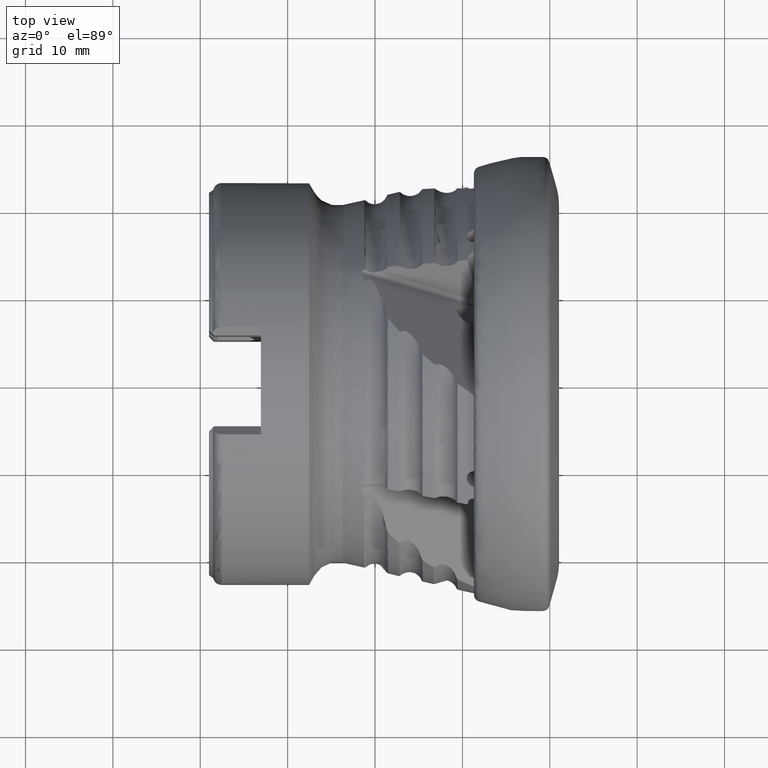
[diagram: clean part render]
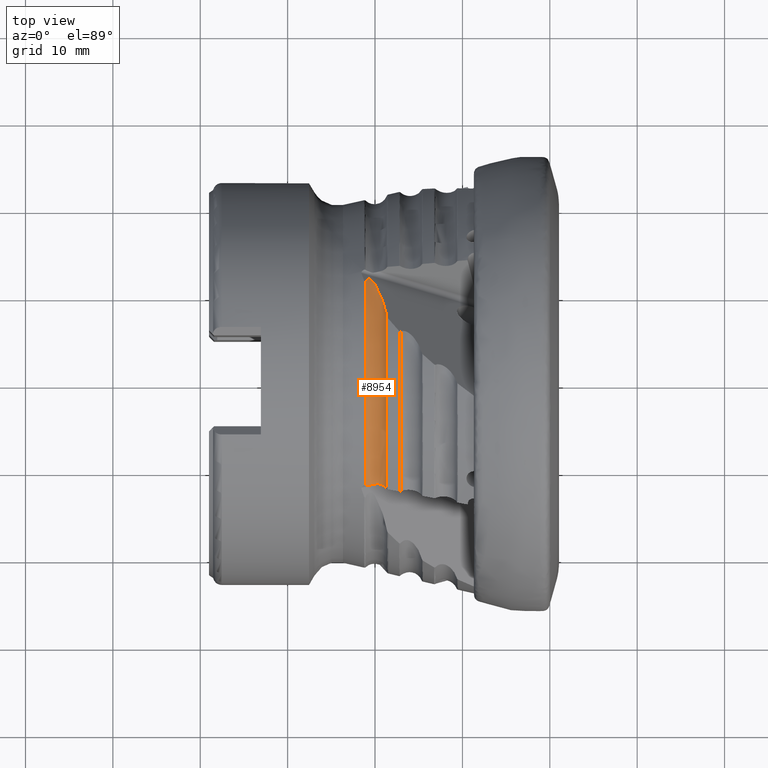
[diagram: same view with one face highlighted and labeled with its STEP entity id]
A machine part, top view. The second image highlights one B-rep face of the part: STEP entity #8954.
In plain terms, the highlighted toroidal blend (fillet) surface has major radius 22.1056 mm and minor (blend) radius 1.5 mm.
Its self-contained STEP definition (entity closure, byte-faithful):
#147 = CARTESIAN_POINT ( 'NONE',  ( -18.83420536669757800, -12.07604253285646200, 17.42930489717644700 ) ) ;
#432 = CARTESIAN_POINT ( 'NONE',  ( -20.18206663218673200, 11.36673044976028300, 17.19127439798386400 ) ) ;
#515 = VERTEX_POINT ( 'NONE', #1441 ) ;
#735 = CARTESIAN_POINT ( 'NONE',  ( -20.97129028517865000, -11.90463999588526000, 17.19484492171752500 ) ) ;
#775 = CARTESIAN_POINT ( 'NONE',  ( -20.39302183279721300, -11.81919402878095800, 16.92516635417026500 ) ) ;
#930 = CARTESIAN_POINT ( 'NONE',  ( -18.64922864038294000, -12.30127360869037600, 17.71730282600475800 ) ) ;
#1154 = CARTESIAN_POINT ( 'NONE',  ( -18.64922864038294400, 7.488645797815390600, 20.22731657781329100 ) ) ;
#1227 = CARTESIAN_POINT ( 'NONE',  ( -20.35333458569974500, 11.55966102298362600, 17.09393407942015800 ) ) ;
#1274 = TOROIDAL_SURFACE ( 'NONE', #3848, 22.10556227074097200, 1.500000000000000900 ) ;
#1332 = CARTESIAN_POINT ( 'NONE',  ( -21.07315635611660600, -11.92224939465047500, 17.29810966300724900 ) ) ;
#1441 = CARTESIAN_POINT ( 'NONE',  ( -21.07315635611662000, 11.44119915079428700, 17.61997702988101700 ) ) ;
#1462 = EDGE_CURVE ( 'NONE', #1739, #515, #9987, .T. ) ;
#1575 = CARTESIAN_POINT ( 'NONE',  ( -20.03847583795256100, -11.73665933451635500, 16.92811346804276700 ) ) ;
#1739 = VERTEX_POINT ( 'NONE', #3649 ) ;
#2028 = CARTESIAN_POINT ( 'NONE',  ( -20.51803391425665200, 11.68504128406969800, 17.06085492958283100 ) ) ;
#2141 = ORIENTED_EDGE ( 'NONE', *, *, #9572, .T. ) ;
#2371 = CARTESIAN_POINT ( 'NONE',  ( -19.61178160956886200, -11.71346203183988500, 17.02276125132552000 ) ) ;
#2782 = CARTESIAN_POINT ( 'NONE',  ( -19.10118284619676400, 9.115495531307811200, 18.84571143392625800 ) ) ;
#2816 = CARTESIAN_POINT ( 'NONE',  ( -20.70991844265395100, 11.72657535284726500, 17.12751241158677800 ) ) ;
#3010 = ORIENTED_EDGE ( 'NONE', *, *, #5117, .T. ) ;
#3141 = ORIENTED_EDGE ( 'NONE', *, *, #5961, .T. ) ;
#3213 = CIRCLE ( 'NONE', #6737, 21.00867983814471500 ) ;
#3381 = VERTEX_POINT ( 'NONE', #4629 ) ;
#3554 = CARTESIAN_POINT ( 'NONE',  ( -19.51565463614482000, 10.14022040533940200, 18.04882040843328600 ) ) ;
#3596 = CARTESIAN_POINT ( 'NONE',  ( -20.85621139982640000, 11.67363851239072000, 17.26346488120244200 ) ) ;
#3649 = CARTESIAN_POINT ( 'NONE',  ( -18.64922864038294400, 7.488645797815390600, 20.22731657781329100 ) ) ;
#3848 = AXIS2_PLACEMENT_3D ( 'NONE', #4945, #7995, #5718 ) ;
#4054 = CARTESIAN_POINT ( 'NONE',  ( -19.28856589964364300, -11.81080968314701200, 17.11829692508700200 ) ) ;
#4288 = CARTESIAN_POINT ( 'NONE',  ( -21.07315635611660600, 0.0000000000000000000, 0.0000000000000000000 ) ) ;
#4323 = VERTEX_POINT ( 'NONE', #1332 ) ;
#4355 = CARTESIAN_POINT ( 'NONE',  ( -19.81091421840319800, 10.75737874332672400, 17.59467255514376300 ) ) ;
#4381 = CARTESIAN_POINT ( 'NONE',  ( -21.02437999510276300, 11.51594640033136900, 17.51719318892816400 ) ) ;
#4504 = CARTESIAN_POINT ( 'NONE',  ( -18.64922864038296900, 0.0000000000000000000, 0.0000000000000000000 ) ) ;
#4540 = AXIS2_PLACEMENT_3D ( 'NONE', #4504, #10004, #5294 ) ;
#4629 = CARTESIAN_POINT ( 'NONE',  ( -18.64922864038294000, -12.30127360869037600, 17.71730282600475800 ) ) ;
#4686 = CARTESIAN_POINT ( 'NONE',  ( -20.66828254597287500, -11.87352774251791800, 17.00130595589297800 ) ) ;
#4809 = CIRCLE ( 'NONE', #4540, 21.56905542262384400 ) ;
#4849 = CARTESIAN_POINT ( 'NONE',  ( -19.11637109209599900, -11.88943064002902400, 17.20602395822609400 ) ) ;
#4945 = CARTESIAN_POINT ( 'NONE',  ( -20.04999999999999700, 0.0000000000000000000, 0.0000000000000000000 ) ) ;
#4967 = EDGE_CURVE ( 'NONE', #3381, #1739, #4809, .T. ) ;
#5094 = DIRECTION ( 'NONE',  ( 0.0000000000000000000, 0.0000000000000000000, -1.000000000000000000 ) ) ;
#5117 = EDGE_CURVE ( 'NONE', #4323, #9529, #9336, .T. ) ;
#5150 = CARTESIAN_POINT ( 'NONE',  ( -20.11300171341251200, 11.26669528790716500, 17.25290153168700200 ) ) ;
#5294 = DIRECTION ( 'NONE',  ( 0.0000000000000000000, 0.0000000000000000000, 1.000000000000000000 ) ) ;
#5324 = ORIENTED_EDGE ( 'NONE', *, *, #4967, .T. ) ;
#5403 = ORIENTED_EDGE ( 'NONE', *, *, #1462, .T. ) ;
#5472 = CARTESIAN_POINT ( 'NONE',  ( -20.46300944112886100, -11.83554942148631600, 16.93595764859155000 ) ) ;
#5627 = CARTESIAN_POINT ( 'NONE',  ( -18.72173909400045100, -12.18580364631491400, 17.56699837943526500 ) ) ;
#5718 = DIRECTION ( 'NONE',  ( 0.0000000000000000000, 0.0000000000000000000, -1.000000000000000000 ) ) ;
#5871 = CARTESIAN_POINT ( 'NONE',  ( -18.72569661785689000, 7.891312727762719500, 19.86534496208482600 ) ) ;
#5917 = CARTESIAN_POINT ( 'NONE',  ( -20.30758290309687600, 11.51190113007309200, 17.11613477547355100 ) ) ;
#5961 = EDGE_CURVE ( 'NONE', #515, #4323, #3213, .T. ) ;
#6222 = CARTESIAN_POINT ( 'NONE',  ( -21.07315635611660600, -11.92224939465047500, 17.29810966300724900 ) ) ;
#6252 = CARTESIAN_POINT ( 'NONE',  ( -20.17898495132015700, -11.76891641996085400, 16.91217620703126600 ) ) ;
#6377 = CARTESIAN_POINT ( 'NONE',  ( -19.47590246233596600, -11.75438676241005500, 17.06292423066841500 ) ) ;
#6706 = CARTESIAN_POINT ( 'NONE',  ( -20.45816634313007400, 11.64625410450086200, 17.06604846388032100 ) ) ;
#6737 = AXIS2_PLACEMENT_3D ( 'NONE', #4288, #9782, #5094 ) ;
#7031 = CARTESIAN_POINT ( 'NONE',  ( -19.75332414021707800, -11.70922385783569400, 16.98288628530600200 ) ) ;
#7125 = EDGE_LOOP ( 'NONE', ( #3141, #3010, #2141, #5324, #5403 ) ) ;
#7227 = FACE_OUTER_BOUND ( 'NONE', #7125, .T. ) ;
#7431 = CARTESIAN_POINT ( 'NONE',  ( -18.83711798511642900, 8.299626760676250800, 19.51744627558033300 ) ) ;
#7467 = CARTESIAN_POINT ( 'NONE',  ( -20.64620869770110200, 11.72707112171636200, 17.09100520314319400 ) ) ;
#7712 = B_SPLINE_CURVE_WITH_KNOTS ( 'NONE', 3,
 ( #9543, #4054, #4849, #147, #5627, #930 ),
 .UNSPECIFIED., .F., .F.,
 ( 4, 2, 4 ),
 ( 0.002646225087641195400, 0.003254231442718616300, 0.003862237797796037300 ),
 .UNSPECIFIED. ) ;
#7799 = CARTESIAN_POINT ( 'NONE',  ( -19.47590246233596600, -11.75438676241005500, 17.06292423066841500 ) ) ;
#7995 = DIRECTION ( 'NONE',  ( 1.000000000000000000, -0.0000000000000000000, -0.0000000000000000000 ) ) ;
#8239 = CARTESIAN_POINT ( 'NONE',  ( -19.25407226004860200, 9.524638200395751000, 18.52041638676269000 ) ) ;
#8280 = CARTESIAN_POINT ( 'NONE',  ( -20.81360738124080000, 11.69863854549877600, 17.21422863635849900 ) ) ;
#8954 = ADVANCED_FACE ( 'NONE', ( #7227 ), #1274, .F. ) ;
#9036 = CARTESIAN_POINT ( 'NONE',  ( -19.60841131442357700, 10.34597899334289800, 17.89419760954197300 ) ) ;
#9068 = CARTESIAN_POINT ( 'NONE',  ( -20.96887653992262200, 11.58762720789364800, 17.41369290046301200 ) ) ;
#9336 = B_SPLINE_CURVE_WITH_KNOTS ( 'NONE', 3,
 ( #6222, #735, #9384, #4686, #10178, #5472, #775, #6252, #1575, #7031, #2371, #7799 ),
 .UNSPECIFIED., .F., .F.,
 ( 4, 2, 2, 2, 2, 4 ),
 ( 3.004629197474318900E-017, 0.0004323081406112609200, 0.0006484622109168811100, 0.0008646162812225013600, 0.001296924421833742500, 0.001729232562444983600 ),
 .UNSPECIFIED. ) ;
#9384 = CARTESIAN_POINT ( 'NONE',  ( -20.85950626869475100, -11.89766716674530800, 17.10348887224669700 ) ) ;
#9529 = VERTEX_POINT ( 'NONE', #6377 ) ;
#9543 = CARTESIAN_POINT ( 'NONE',  ( -19.47590246233596600, -11.75438676241005500, 17.06292423066841500 ) ) ;
#9572 = EDGE_CURVE ( 'NONE', #9529, #3381, #7712, .T. ) ;
#9782 = DIRECTION ( 'NONE',  ( 1.000000000000000000, -0.0000000000000000000, -0.0000000000000000000 ) ) ;
#9838 = CARTESIAN_POINT ( 'NONE',  ( -19.91949427307485400, 10.96354118431731100, 17.44858664103059800 ) ) ;
#9882 = CARTESIAN_POINT ( 'NONE',  ( -21.07315635611662000, 11.44119915079428700, 17.61997702988101700 ) ) ;
#9987 = B_SPLINE_CURVE_WITH_KNOTS ( 'NONE', 3,
 ( #1154, #5871, #7431, #2782, #8239, #3554, #9036, #4355, #9838, #5150, #432, #5917, #1227, #6706, #2028, #7467, #2816, #8280, #3596, #9068, #4381, #9882 ),
 .UNSPECIFIED., .F., .F.,
 ( 4, 2, 2, 2, 2, 2, 2, 2, 2, 2, 4 ),
 ( 0.001919065645207522100, 0.003551428868490209100, 0.005183792091772896100, 0.005999973703414237900, 0.006816155315055578800, 0.007224246120876250100, 0.007428291523786584500, 0.007632336926696918000, 0.007836382329607250600, 0.008040427732517584100, 0.008448518538338245900 ),
 .UNSPECIFIED. ) ;
#10004 = DIRECTION ( 'NONE',  ( -1.000000000000000000, 0.0000000000000000000, 0.0000000000000000000 ) ) ;
#10178 = CARTESIAN_POINT ( 'NONE',  ( -20.60014785295343400, -11.86272902583170800, 16.97368046692236000 ) ) ;